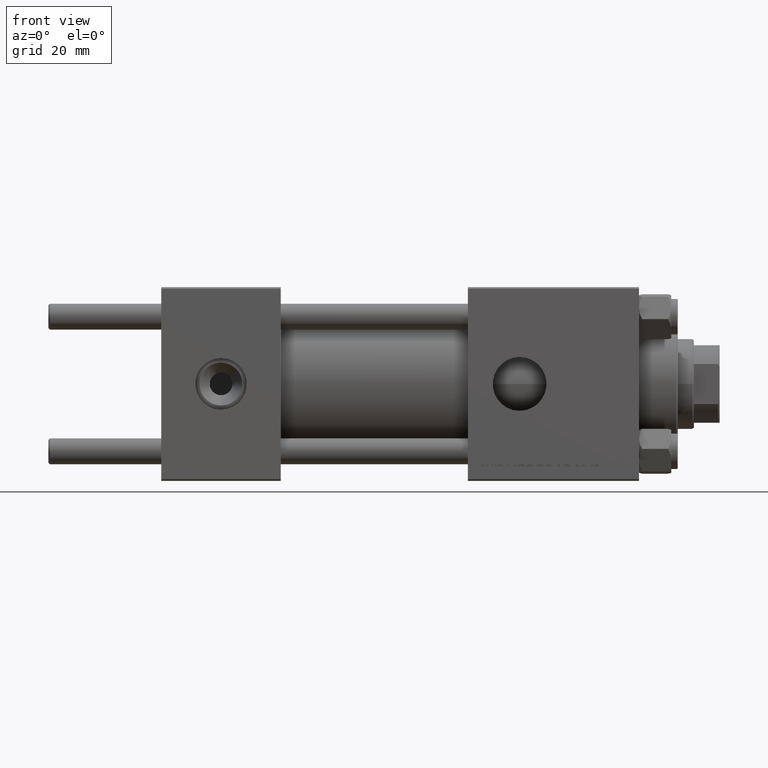
[diagram: clean part render]
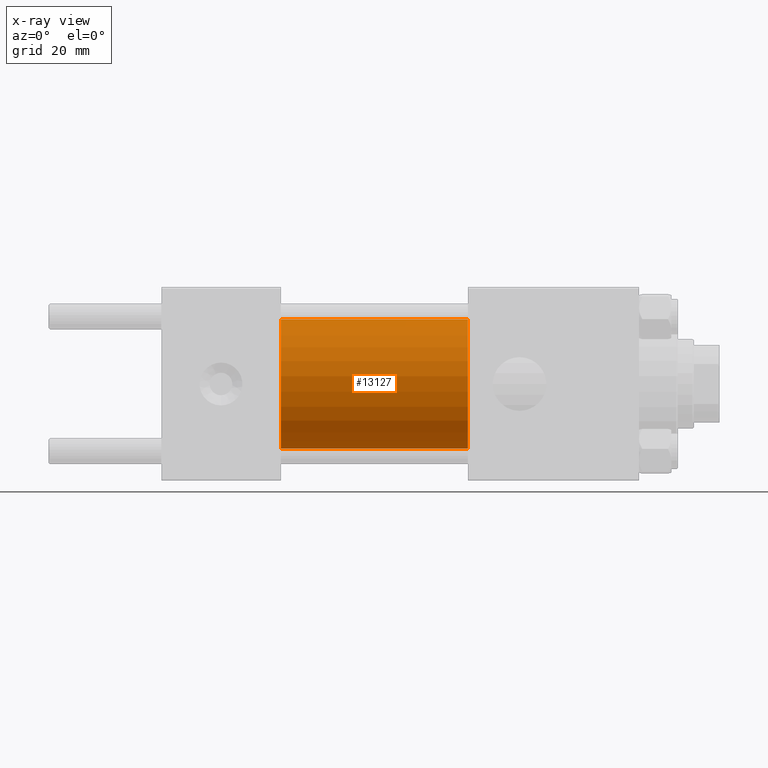
[diagram: x-ray — body ghosted, one internal face saturated and labeled with its STEP entity id]
A machine part, front view, then the same camera in x-ray: the body is ghosted and one INTERNAL B-rep face — a face not visible from any outside direction — is saturated and labeled: STEP entity #13127.
In plain terms, the highlighted cylindrical surface (partial cylindrical patch) has radius 20 mm, axis along (-1, -0, -0).
Its self-contained STEP definition (entity closure, byte-faithful):
#994 = CARTESIAN_POINT ( 'NONE',  ( 37.00000000000000000, 2.449293598294706119E-15, -20.00000000000000000 ) ) ;
#1135 = VERTEX_POINT ( 'NONE', #994 ) ;
#1740 = FACE_OUTER_BOUND ( 'NONE', #35458, .T. ) ;
#3618 = EDGE_CURVE ( 'NONE', #26544, #17875, #34902, .T. ) ;
#8651 = ORIENTED_EDGE ( 'NONE', *, *, #42710, .T. ) ;
#11299 = ORIENTED_EDGE ( 'NONE', *, *, #29126, .T. ) ;
#12662 = AXIS2_PLACEMENT_3D ( 'NONE', #17293, #45787, #46048 ) ;
#13127 = ADVANCED_FACE ( 'NONE', ( #1740 ), #34431, .F. ) ;
#13372 = CIRCLE ( 'NONE', #36930, 20.00000000000000000 ) ;
#14448 = ORIENTED_EDGE ( 'NONE', *, *, #3618, .F. ) ;
#16509 = DIRECTION ( 'NONE',  ( 1.000000000000000000, 0.000000000000000000, 0.000000000000000000 ) ) ;
#16906 = VERTEX_POINT ( 'NONE', #48904 ) ;
#17293 = CARTESIAN_POINT ( 'NONE',  ( 95.00000000000000000, 0.000000000000000000, 0.000000000000000000 ) ) ;
#17875 = VERTEX_POINT ( 'NONE', #45285 ) ;
#21772 = VECTOR ( 'NONE', #30174, 1000.000000000000000 ) ;
#23299 = DIRECTION ( 'NONE',  ( 0.000000000000000000, 0.000000000000000000, -1.000000000000000000 ) ) ;
#24412 = LINE ( 'NONE', #31794, #44132 ) ;
#24673 = DIRECTION ( 'NONE',  ( -1.000000000000000000, -0.000000000000000000, -0.000000000000000000 ) ) ;
#26544 = VERTEX_POINT ( 'NONE', #28036 ) ;
#27423 = EDGE_CURVE ( 'NONE', #17875, #1135, #36899, .T. ) ;
#28036 = CARTESIAN_POINT ( 'NONE',  ( 95.00000000000000000, 0.000000000000000000, 20.00000000000000000 ) ) ;
#29126 = EDGE_CURVE ( 'NONE', #26544, #16906, #13372, .T. ) ;
#30174 = DIRECTION ( 'NONE',  ( -1.000000000000000000, -0.000000000000000000, -0.000000000000000000 ) ) ;
#31794 = CARTESIAN_POINT ( 'NONE',  ( 95.00000000000000000, 2.449293598294706119E-15, -20.00000000000000000 ) ) ;
#32315 = DIRECTION ( 'NONE',  ( 0.000000000000000000, 0.000000000000000000, -1.000000000000000000 ) ) ;
#34431 = CYLINDRICAL_SURFACE ( 'NONE', #12662, 20.00000000000000000 ) ;
#34902 = LINE ( 'NONE', #50731, #21772 ) ;
#35458 = EDGE_LOOP ( 'NONE', ( #11299, #8651, #45500, #14448 ) ) ;
#36899 = CIRCLE ( 'NONE', #39410, 20.00000000000000000 ) ;
#36930 = AXIS2_PLACEMENT_3D ( 'NONE', #48082, #43864, #23299 ) ;
#39410 = AXIS2_PLACEMENT_3D ( 'NONE', #52123, #16509, #32315 ) ;
#42710 = EDGE_CURVE ( 'NONE', #16906, #1135, #24412, .T. ) ;
#43864 = DIRECTION ( 'NONE',  ( 1.000000000000000000, 0.000000000000000000, 0.000000000000000000 ) ) ;
#44132 = VECTOR ( 'NONE', #24673, 1000.000000000000000 ) ;
#45285 = CARTESIAN_POINT ( 'NONE',  ( 37.00000000000000000, 0.000000000000000000, 20.00000000000000000 ) ) ;
#45500 = ORIENTED_EDGE ( 'NONE', *, *, #27423, .F. ) ;
#45787 = DIRECTION ( 'NONE',  ( -1.000000000000000000, -0.000000000000000000, -0.000000000000000000 ) ) ;
#46048 = DIRECTION ( 'NONE',  ( 0.000000000000000000, 0.000000000000000000, 1.000000000000000000 ) ) ;
#48082 = CARTESIAN_POINT ( 'NONE',  ( 95.00000000000000000, 0.000000000000000000, 0.000000000000000000 ) ) ;
#48904 = CARTESIAN_POINT ( 'NONE',  ( 95.00000000000000000, 2.449293598294706119E-15, -20.00000000000000000 ) ) ;
#50731 = CARTESIAN_POINT ( 'NONE',  ( 95.00000000000000000, 0.000000000000000000, 20.00000000000000000 ) ) ;
#52123 = CARTESIAN_POINT ( 'NONE',  ( 37.00000000000000000, 0.000000000000000000, 0.000000000000000000 ) ) ;